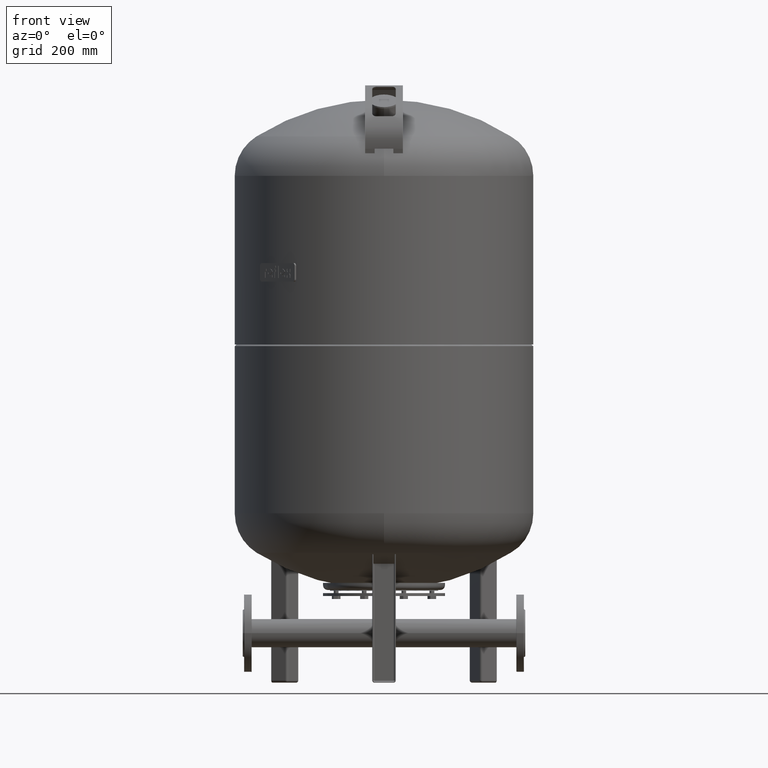
[diagram: clean part render]
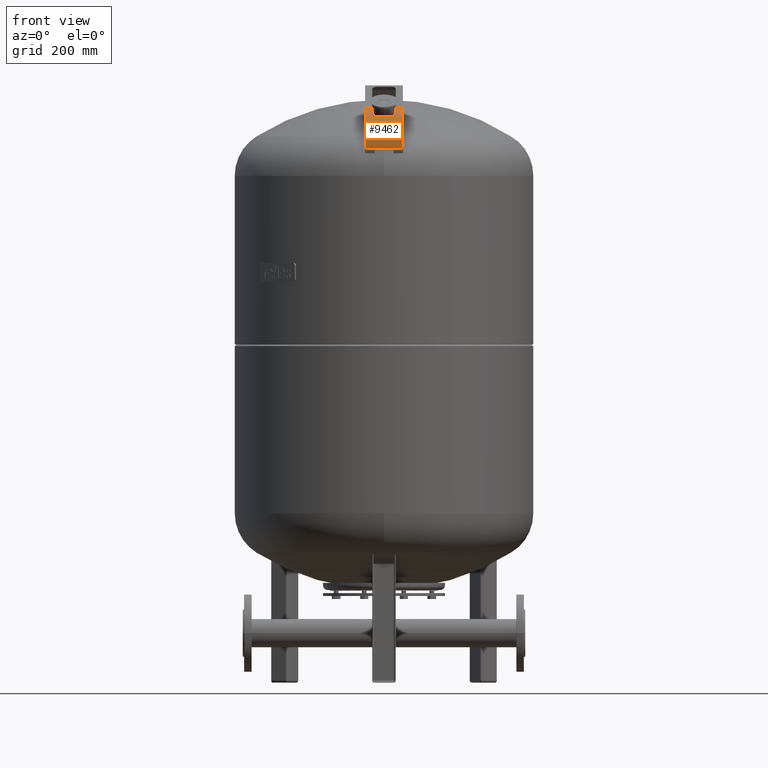
[diagram: same view with one face highlighted and labeled with its STEP entity id]
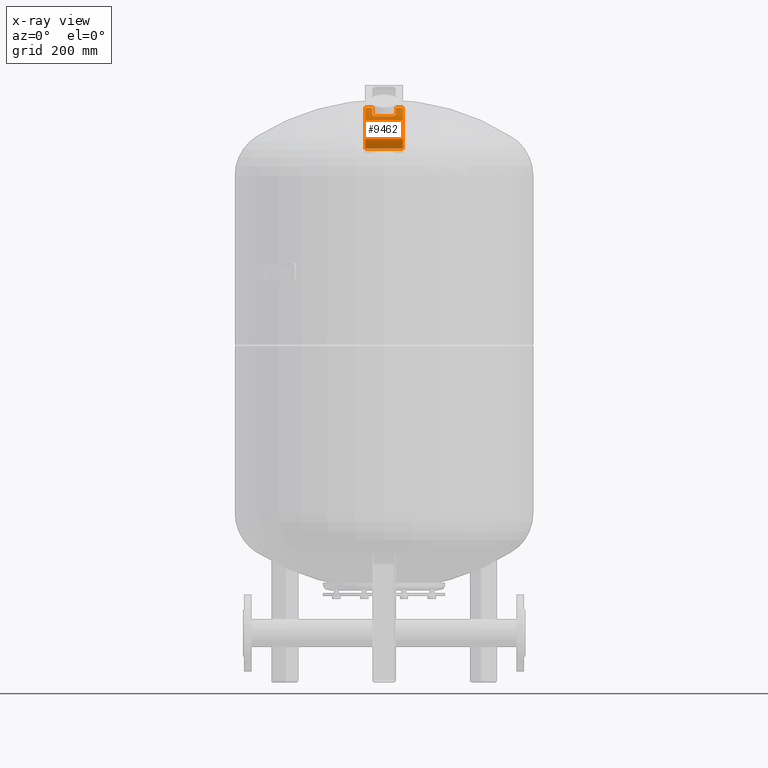
[diagram: x-ray of the same camera — body ghosted, the highlighted face saturated]
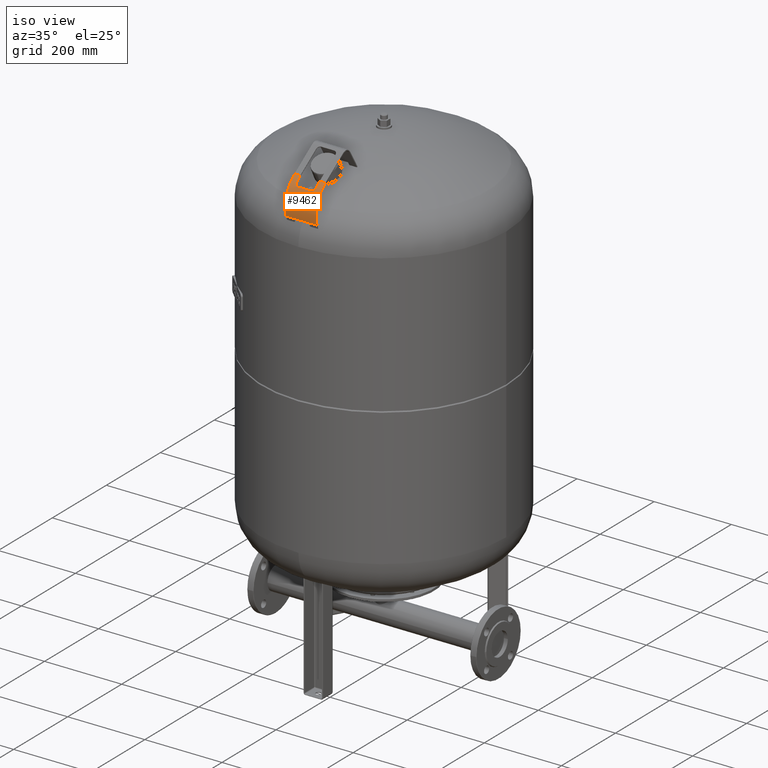
[diagram: same view with one face highlighted and labeled with its STEP entity id]
A machine part, front view. The second image highlights one B-rep face of the part: STEP entity #9462.
The next image is the same camera in x-ray: the body ghosted, the highlighted face saturated — about 0% of this face is hidden behind the body in this view.
A second angle (iso view) of the same face is appended — the face is thin or edge-on in the first view.
In plain terms, the highlighted cylindrical surface (partial cylindrical patch) has radius 79 mm, axis along (1, -0, -0).
Its self-contained STEP definition (entity closure, byte-faithful):
#8770=CARTESIAN_POINT('',(19.999999999999876,-305.403670454327370,1133.857654966532200));
#8771=VERTEX_POINT('',#8770);
#8778=CARTESIAN_POINT('',(-20.000000000000124,-305.403670454327370,1133.857654966532200));
#8779=VERTEX_POINT('',#8778);
#8780=CARTESIAN_POINT('',(-20.000000000000124,-305.403670454327370,1133.857654966532200));
#8781=DIRECTION('',(1.0,0.0,0.0));
#8782=VECTOR('',#8781,40.0);
#8783=LINE('',#8780,#8782);
#8784=EDGE_CURVE('',#8779,#8771,#8783,.T.);
#8990=CARTESIAN_POINT('',(-25.000000000000082,-287.628775249873290,1208.970392324738400));
#8991=VERTEX_POINT('',#8990);
#8998=CARTESIAN_POINT('',(-17.000000000000110,-292.800837062069720,1202.721719893910200));
#8999=VERTEX_POINT('',#8998);
#9000=CARTESIAN_POINT('',(-17.000000000000110,-292.800837062069660,1202.721719893910200));
#9001=CARTESIAN_POINT('',(-18.001098037693502,-292.800869305556940,1202.721676591772800));
#9002=CARTESIAN_POINT('',(-18.994389289908153,-292.687482082367180,1202.875035729171500));
#9003=CARTESIAN_POINT('',(-20.846478049911806,-292.242057505271820,1203.464415106045900));
#9004=CARTESIAN_POINT('',(-21.688261161398533,-291.917693671465090,1203.889852493048700));
#9005=CARTESIAN_POINT('',(-23.154927435061847,-291.072088711897270,1204.963530079599000));
#9006=CARTESIAN_POINT('',(-23.760069219120382,-290.553345320865160,1205.607175378011600));
#9007=CARTESIAN_POINT('',(-24.462487950084636,-289.609194522094410,1206.732799712332500));
#9008=CARTESIAN_POINT('',(-24.663795012076321,-289.231326662748240,1207.174154393710500));
#9009=CARTESIAN_POINT('',(-24.932595877861196,-288.445384679723990,1208.070499610578700));
#9010=CARTESIAN_POINT('',(-25.000029814050379,-288.040049825339570,1208.522468567337900));
#9011=CARTESIAN_POINT('',(-25.000000000000082,-287.628775249873290,1208.970392324738400));
#9012=B_SPLINE_CURVE_WITH_KNOTS('',3,(#9000,#9001,#9002,#9003,#9004,#9005,#9006,#9007,#9008,#9009,#9010,#9011),.UNSPECIFIED.,.F.,.U.,(4,2,2,2,2,4),(0.0,0.300329411744744,0.596044484812661,0.899555431535718,1.082712991981320,1.264749568333981),.UNSPECIFIED.);
#9013=EDGE_CURVE('',#8999,#8991,#9012,.T.);
#9038=CARTESIAN_POINT('',(16.999999999999883,-292.800837062069660,1202.721719893910200));
#9039=VERTEX_POINT('',#9038);
#9040=CARTESIAN_POINT('',(16.999999999999883,-292.800837062069660,1202.721719893910200));
#9041=DIRECTION('',(-1.0,0.0,0.0));
#9042=VECTOR('',#9041,33.999999999999993);
#9043=LINE('',#9040,#9042);
#9044=EDGE_CURVE('',#9039,#8999,#9043,.T.);
#9249=CARTESIAN_POINT('',(24.999999999999890,-287.628775249873290,1208.970392324738400));
#9250=VERTEX_POINT('',#9249);
#9251=CARTESIAN_POINT('',(24.999999999999847,-287.628775249873290,1208.970392324738400));
#9252=CARTESIAN_POINT('',(25.000052143342824,-288.348074742906250,1208.186995171509600));
#9253=CARTESIAN_POINT('',(24.793327339327575,-289.046874103223440,1207.392926815552100));
#9254=CARTESIAN_POINT('',(23.980301755713096,-290.333728665748990,1205.875717760449300));
#9255=CARTESIAN_POINT('',(23.375306670411753,-290.908492143505500,1205.167924740867400));
#9256=CARTESIAN_POINT('',(21.900263560729414,-291.821341864059150,1204.014558492114700));
#9257=CARTESIAN_POINT('',(21.067202024343008,-292.166450374399180,1203.563590910460300));
#9258=CARTESIAN_POINT('',(19.662136493641427,-292.535166687331750,1203.076900106761500));
#9259=CARTESIAN_POINT('',(19.154013798091558,-292.632620193142430,1202.946921883830600));
#9260=CARTESIAN_POINT('',(18.095566499509481,-292.766747374543970,1202.767603989651000));
#9261=CARTESIAN_POINT('',(17.548063254247989,-292.800854714157650,1202.721696187630400));
#9262=CARTESIAN_POINT('',(16.999999999999883,-292.800837062069660,1202.721719893910200));
#9263=B_SPLINE_CURVE_WITH_KNOTS('',3,(#9251,#9252,#9253,#9254,#9255,#9256,#9257,#9258,#9259,#9260,#9261,#9262),.UNSPECIFIED.,.F.,.U.,(4,2,2,2,2,4),(0.0,0.319059959376750,0.643429384093297,0.942865666803827,1.102285567286538,1.266952028297452),.UNSPECIFIED.);
#9264=EDGE_CURVE('',#9250,#9039,#9263,.T.);
#9369=CARTESIAN_POINT('',(-9.448485E-014,-229.437479199736460,1155.540315925716600));
#9370=DIRECTION('',(1.0,-3.863744E-016,-2.268409E-017));
#9371=DIRECTION('',(-1.984131E-016,-0.562083377852132,0.827080574274561));
#9372=AXIS2_PLACEMENT_3D('',#9369,#9370,#9371);
#9373=CYLINDRICAL_SURFACE('',#9372,79.0);
#9374=CARTESIAN_POINT('',(24.999999999999890,-273.842066050054880,1220.879681293406700));
#9375=VERTEX_POINT('',#9374);
#9376=CARTESIAN_POINT('',(24.999999999999904,-229.437479199736460,1155.540315925716600));
#9377=DIRECTION('',(1.0,-1.115247E-016,1.641036E-016));
#9378=DIRECTION('',(-1.984131E-016,-0.562083377852132,0.827080574274561));
#9379=AXIS2_PLACEMENT_3D('',#9376,#9377,#9378);
#9380=CIRCLE('',#9379,79.0);
#9381=EDGE_CURVE('',#9375,#9250,#9380,.T.);
#9382=ORIENTED_EDGE('',*,*,#9381,.T.);
#9383=ORIENTED_EDGE('',*,*,#9264,.T.);
#9384=ORIENTED_EDGE('',*,*,#9044,.T.);
#9385=ORIENTED_EDGE('',*,*,#9013,.T.);
#9386=CARTESIAN_POINT('',(-25.000000000000110,-273.842066050054880,1220.879681293406700));
#9387=VERTEX_POINT('',#9386);
#9388=CARTESIAN_POINT('',(-25.000000000000096,-229.437479199736460,1155.540315925716600));
#9389=DIRECTION('',(-1.0,1.115247E-016,-1.641036E-016));
#9390=DIRECTION('',(-1.984131E-016,-0.562083377852132,0.827080574274561));
#9391=AXIS2_PLACEMENT_3D('',#9388,#9389,#9390);
#9392=CIRCLE('',#9391,79.0);
#9393=EDGE_CURVE('',#8991,#9387,#9392,.T.);
#9394=ORIENTED_EDGE('',*,*,#9393,.T.);
#9395=CARTESIAN_POINT('',(-40.000000000000107,-273.842066050054880,1220.879681293406700));
#9396=VERTEX_POINT('',#9395);
#9397=CARTESIAN_POINT('',(-40.000000000000107,-273.842066050054880,1220.879681293406700));
#9398=DIRECTION('',(1.0,0.0,0.0));
#9399=VECTOR('',#9398,14.999999999999996);
#9400=LINE('',#9397,#9399);
#9401=EDGE_CURVE('',#9396,#9387,#9400,.T.);
#9402=ORIENTED_EDGE('',*,*,#9401,.F.);
#9403=CARTESIAN_POINT('',(-40.000000000000128,-305.300680368214960,1133.500018548616900));
#9404=VERTEX_POINT('',#9403);
#9405=CARTESIAN_POINT('',(-40.000000000000092,-229.437479199736460,1155.540315925716600));
#9406=DIRECTION('',(1.0,-1.115247E-016,1.641036E-016));
#9407=DIRECTION('',(-1.984131E-016,-0.562083377852132,0.827080574274561));
#9408=AXIS2_PLACEMENT_3D('',#9405,#9406,#9407);
#9409=CIRCLE('',#9408,79.0);
#9410=EDGE_CURVE('',#9396,#9404,#9409,.T.);
#9411=ORIENTED_EDGE('',*,*,#9410,.T.);
#9412=CARTESIAN_POINT('',(-20.000000000000124,-305.300680368214960,1133.500018548616900));
#9413=VERTEX_POINT('',#9412);
#9414=CARTESIAN_POINT('',(-20.000000000000124,-305.300680368214960,1133.500018548616900));
#9415=DIRECTION('',(-1.0,0.0,0.0));
#9416=VECTOR('',#9415,20.000000000000004);
#9417=LINE('',#9414,#9416);
#9418=EDGE_CURVE('',#9413,#9404,#9417,.T.);
#9419=ORIENTED_EDGE('',*,*,#9418,.F.);
#9420=CARTESIAN_POINT('',(-20.000000000000096,-229.437479199736460,1155.540315925716600));
#9421=DIRECTION('',(-1.0,1.115247E-016,-1.641036E-016));
#9422=DIRECTION('',(-1.984131E-016,-0.562083377852132,0.827080574274561));
#9423=AXIS2_PLACEMENT_3D('',#9420,#9421,#9422);
#9424=CIRCLE('',#9423,79.0);
#9425=EDGE_CURVE('',#9413,#8779,#9424,.T.);
#9426=ORIENTED_EDGE('',*,*,#9425,.T.);
#9427=ORIENTED_EDGE('',*,*,#8784,.T.);
#9428=CARTESIAN_POINT('',(19.999999999999876,-305.300680368214960,1133.500018548616900));
#9429=VERTEX_POINT('',#9428);
#9430=CARTESIAN_POINT('',(19.999999999999911,-229.437479199736460,1155.540315925716600));
#9431=DIRECTION('',(1.0,-1.115247E-016,1.641036E-016));
#9432=DIRECTION('',(-1.984131E-016,-0.562083377852132,0.827080574274561));
#9433=AXIS2_PLACEMENT_3D('',#9430,#9431,#9432);
#9434=CIRCLE('',#9433,79.0);
#9435=EDGE_CURVE('',#8771,#9429,#9434,.T.);
#9436=ORIENTED_EDGE('',*,*,#9435,.T.);
#9437=CARTESIAN_POINT('',(39.999999999999872,-305.300680368214960,1133.500018548616900));
#9438=VERTEX_POINT('',#9437);
#9439=CARTESIAN_POINT('',(39.999999999999872,-305.300680368214960,1133.500018548616900));
#9440=DIRECTION('',(-1.0,0.0,0.0));
#9441=VECTOR('',#9440,19.999999999999996);
#9442=LINE('',#9439,#9441);
#9443=EDGE_CURVE('',#9438,#9429,#9442,.T.);
#9444=ORIENTED_EDGE('',*,*,#9443,.F.);
#9445=CARTESIAN_POINT('',(39.999999999999886,-273.842066050054880,1220.879681293406700));
#9446=VERTEX_POINT('',#9445);
#9447=CARTESIAN_POINT('',(39.999999999999893,-229.437479199736460,1155.540315925716600));
#9448=DIRECTION('',(-1.0,1.115247E-016,-1.641036E-016));
#9449=DIRECTION('',(-1.984131E-016,-0.562083377852132,0.827080574274561));
#9450=AXIS2_PLACEMENT_3D('',#9447,#9448,#9449);
#9451=CIRCLE('',#9450,79.0);
#9452=EDGE_CURVE('',#9438,#9446,#9451,.T.);
#9453=ORIENTED_EDGE('',*,*,#9452,.T.);
#9454=CARTESIAN_POINT('',(24.999999999999890,-273.842066050054880,1220.879681293406700));
#9455=DIRECTION('',(1.0,0.0,0.0));
#9456=VECTOR('',#9455,14.999999999999996);
#9457=LINE('',#9454,#9456);
#9458=EDGE_CURVE('',#9375,#9446,#9457,.T.);
#9459=ORIENTED_EDGE('',*,*,#9458,.F.);
#9460=EDGE_LOOP('',(#9382,#9383,#9384,#9385,#9394,#9402,#9411,#9419,#9426,#9427,#9436,#9444,#9453,#9459));
#9461=FACE_OUTER_BOUND('',#9460,.T.);
#9462=ADVANCED_FACE('',(#9461),#9373,.T.);